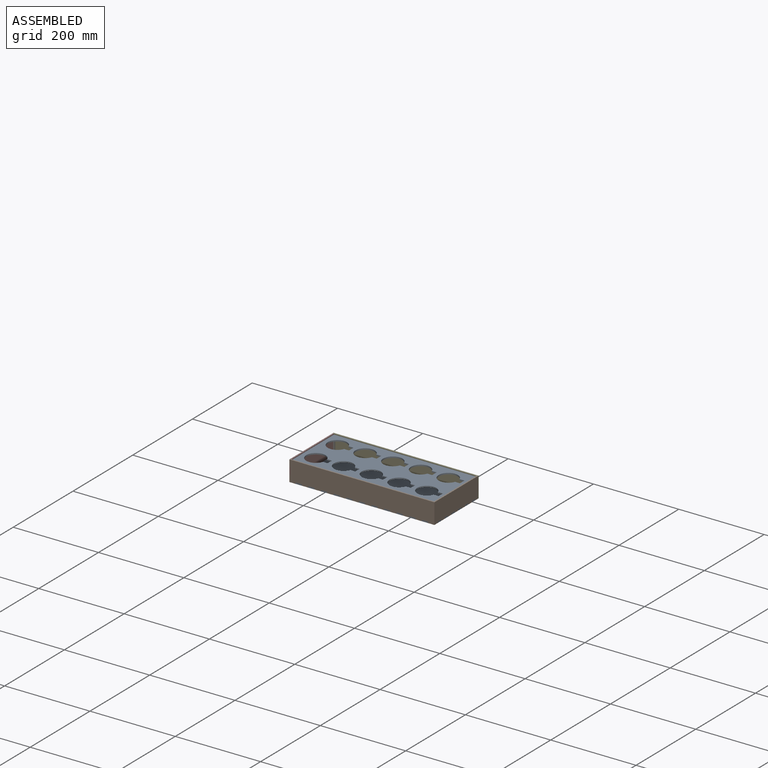
[diagram: assembled view]
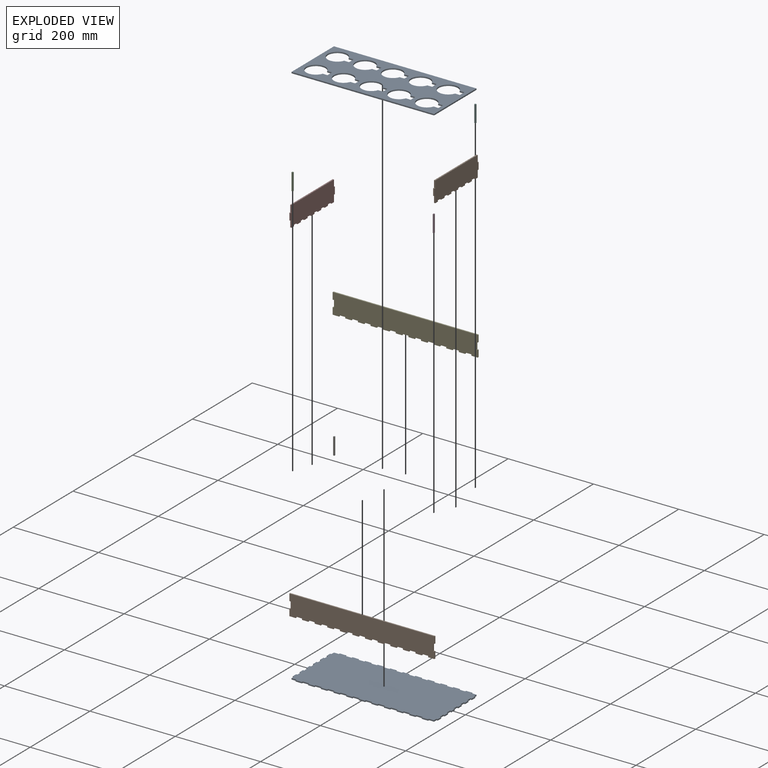
[diagram: exploded view]
GUIDED TOUR — MATED ASSEMBLY (Onshape document 8a0128a03b75702876cab86d, AutoMate assembly 8a0128a03b75702876cab86d_2be92bbeac0dd2bc1f796d09_5a94f49531f2b5c68b8e3e00_default)

This assembly has 10 components, labeled P0..P9 below (a component is one placed occurrence of a part; the same part can appear more than once), held together by 9 mates. A mate is a constraint between two components; its type names the relative motion it leaves free:
  FASTENED — locks the two components together rigidly (no relative motion).
Axis/direction vectors are unit vectors and 'through' points are millimeter coordinates, both in the assembly's world frame.

MATES
  1. FASTENED "Fastened 1": P9 <-> P8, direction (0.000, 0.000, -1.000) through (175.79, 0.71, -12.59) mm
  2. FASTENED "Fastened 5": P3 <-> P8, direction (0.000, 0.000, -1.000) through (175.79, -70.29, -9.59) mm
  3. FASTENED "Fastened 3": P7 <-> P8, direction (0.000, 0.000, -1.000) through (-158.21, 0.71, -12.59) mm
  4. FASTENED "Fastened 8": P2 <-> P8, direction (0.000, 0.000, -1.000) through (-158.21, -70.29, -9.59) mm
  5. FASTENED "Fastened 2": P1 <-> P8, direction (0.000, 0.000, -1.000) through (23.58, -70.29, -12.59) mm
  6. FASTENED "Fastened 6": P5 <-> P8, direction (0.000, 0.000, 1.000) through (175.79, 71.71, -9.59) mm
  7. FASTENED "Fastened 7": P6 <-> P8, direction (0.000, 0.000, 1.000) through (-158.21, 71.71, -9.59) mm
  8. FASTENED "Fastened 4": P4 <-> P8, direction (0.000, 0.000, -1.000) through (-35.55, 71.71, -12.59) mm
  9. FASTENED "Fastened 9": P0 <-> P6, direction (0.000, 0.000, -1.000) through (-158.21, 71.71, 30.41) mm

ASSEMBLY ORDER
  1. P6 — the base component [order verified]
  2. P5 [order verified]
  3. P2 [order verified]
  4. P3 [order verified]
  5. P0 [order verified]
  6. P9 [order verified]
  7. P4 [order verified]
  8. P7 [order verified]
  9. P1 [order verified]
  10. P8 [order verified]
Order-tag legend:
  [order verified] — this step's position reverses a verified removal order: the component was checked to insert without passing through the ones already placed.

Of the 10 components, 5 carry the full construction recipe — the FeatureScript program that regenerates the part's solid from scratch; the rest are supplied as boundary geometry only.
Each toured component is shown spotlighted twice — in the assembled view, then in the exploded view, where a leader line traces a displaced component back to its assembled socket (saturated green if recipe-attached, orange if geometry-only; every other component desaturated gray) — followed by its recipe or geometry summary and the mates that hold it.
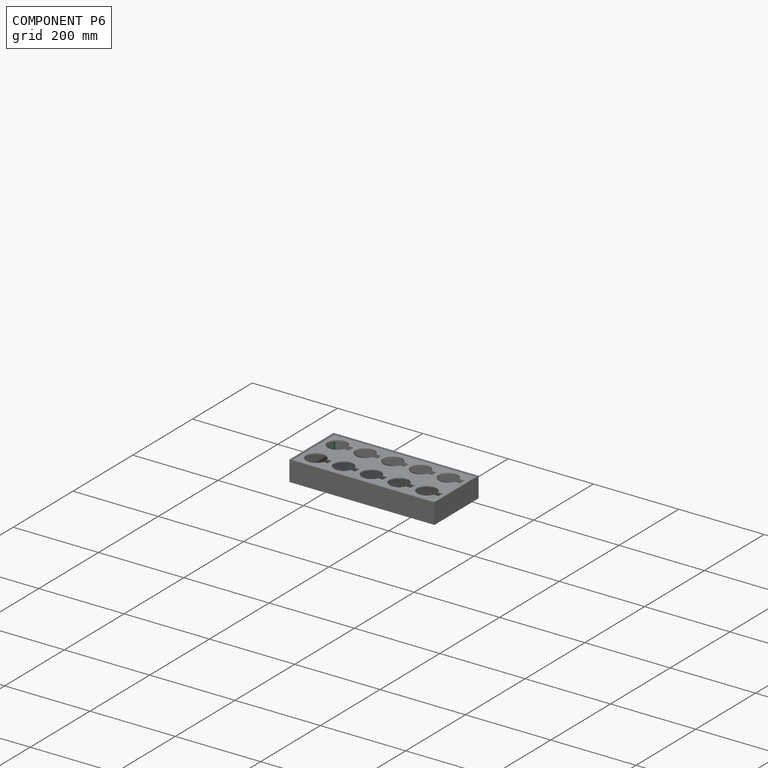
[diagram: component P6 — assembled]
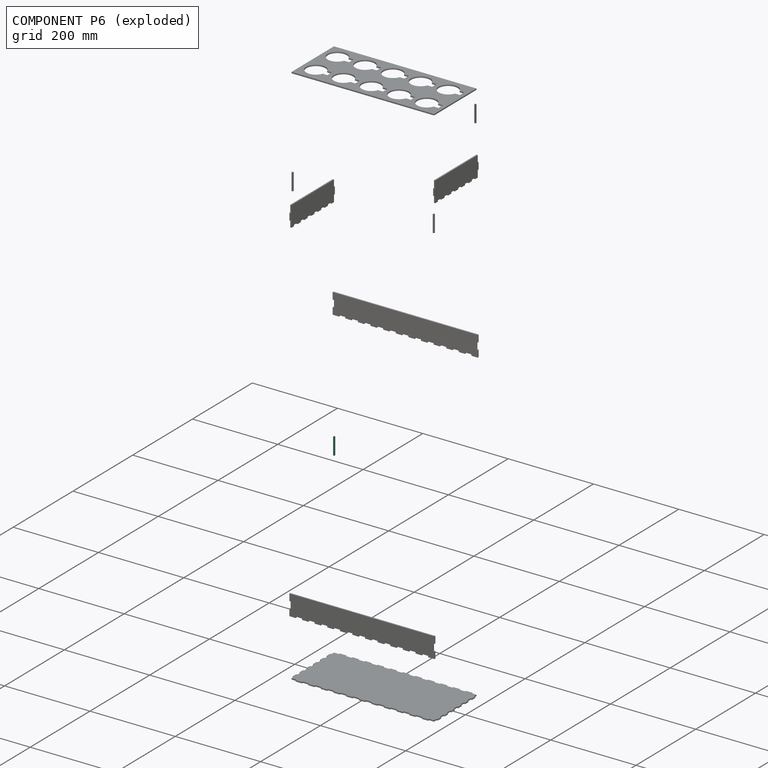
[diagram: component P6 — exploded]
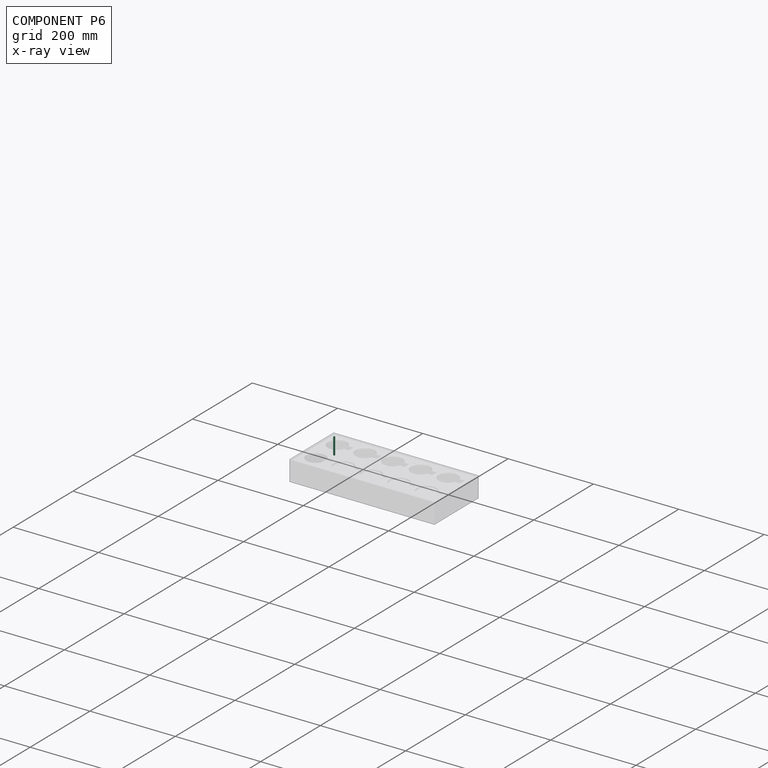
[diagram: component P6 — x-ray view]
COMPONENT P6 — same part as P2 (CADFS 00865831); its construction recipe is shown at P2.
Held by: FASTENED mate "Fastened 7" to P8; FASTENED mate "Fastened 9" to P0.
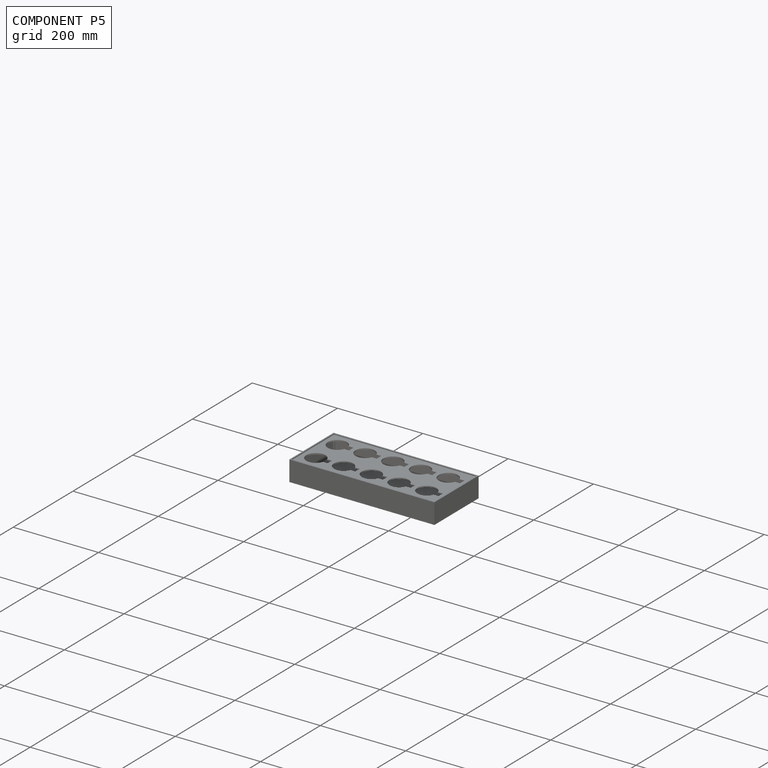
[diagram: component P5 — assembled]
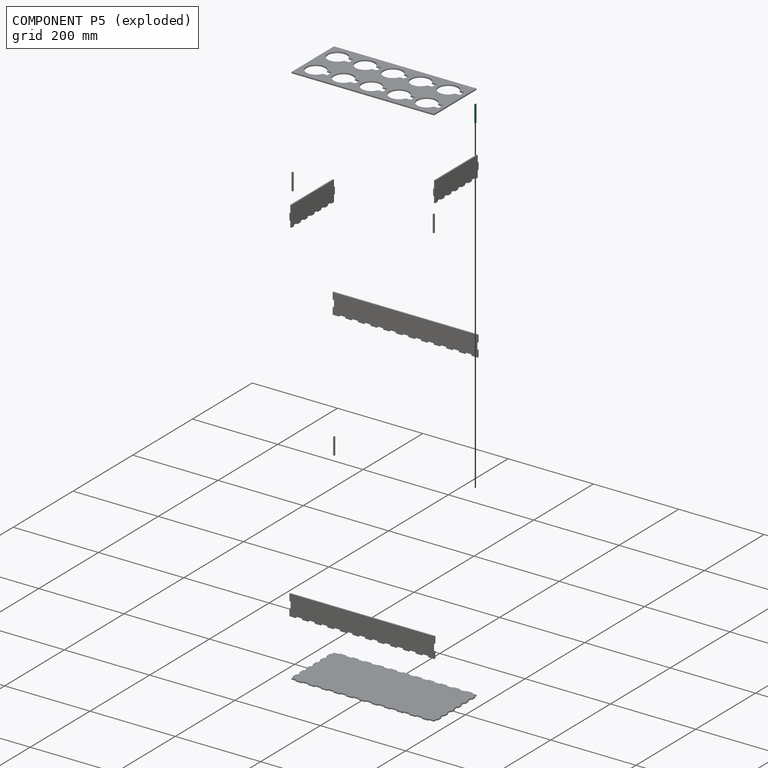
[diagram: component P5 — exploded]
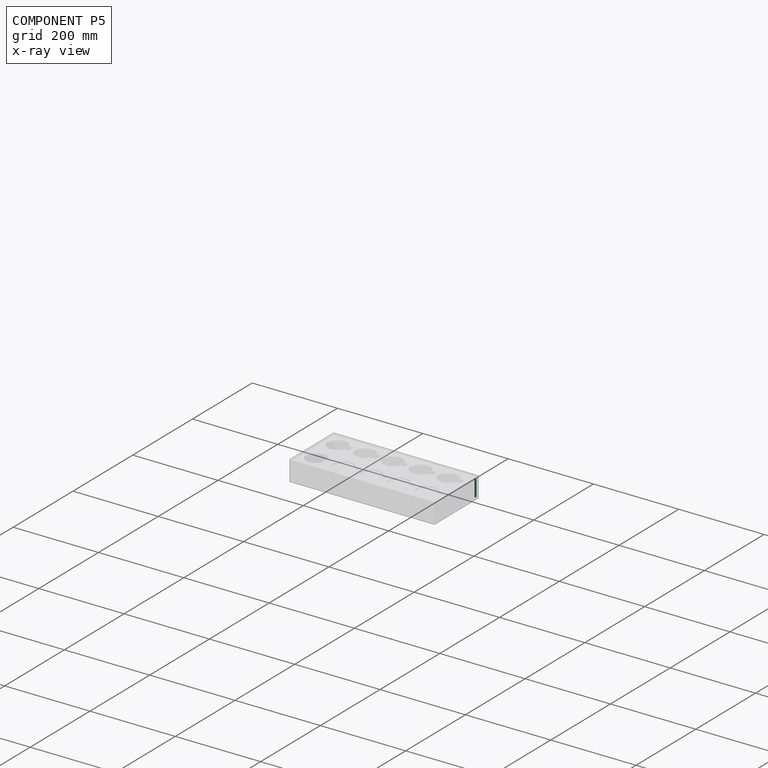
[diagram: component P5 — x-ray view]
COMPONENT P5 — same part as P2 (CADFS 00865831); its construction recipe is shown at P2.
Held by: FASTENED mate "Fastened 6" to P8.
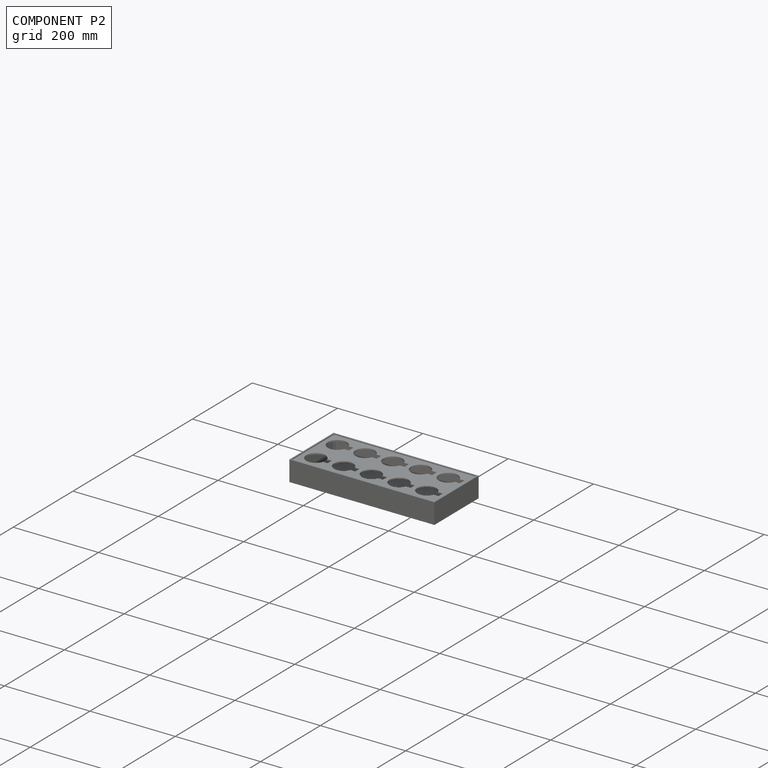
[diagram: component P2 — assembled]
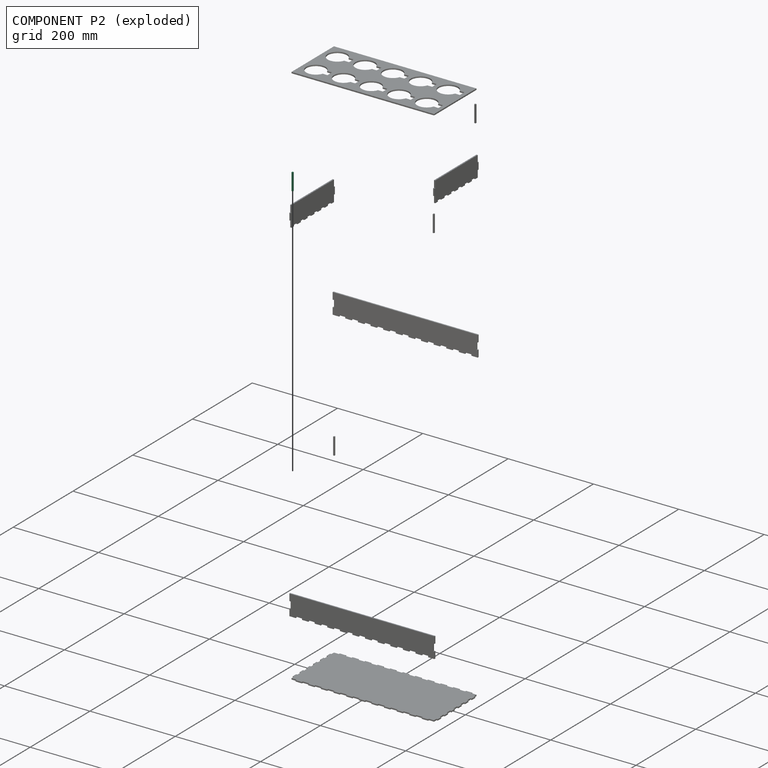
[diagram: component P2 — exploded]
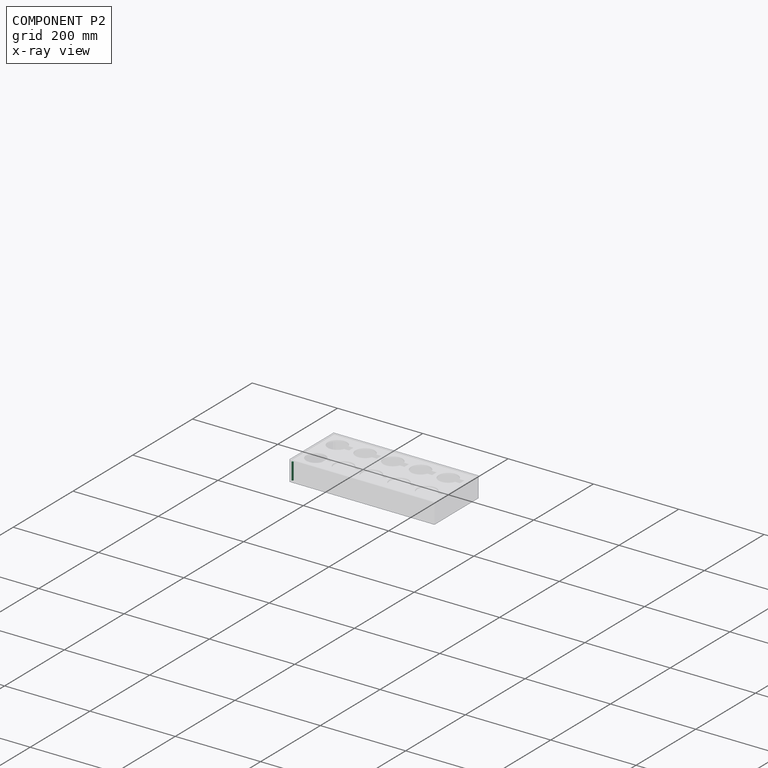
[diagram: component P2 — x-ray view]
COMPONENT P2 — recipe-attached (CADFS 00865831, mesh-verified: the recipe's output STEP matches this component's geometry to below the mesh-comparison resolution (tessellation chordal tolerance ~0.0603 mm)).
Held by: FASTENED mate "Fastened 8" to P8.
Construction recipe (FeatureScript — the CAD program that rebuilds this solid; sketch coordinates are in the units given by the * unit suffixes, e.g. mm):

FeatureScript 1511;
import(path : "onshape/std/geometry.fs", version : "1511.0");
import(path : "onshape/std/common.fs", version : "1511.0");
const mm = millimeter;
const VERTEX = EntityType.VERTEX;
const EDGE = EntityType.EDGE;
const FACE = EntityType.FACE;
const BODY = EntityType.BODY;
function v(x, y){return vector(x, y);}
function OD(order){return orderDisambiguation(order);}
function OSD(set){return originalSetDisambiguation(set);}
function TD(topology){return topologyDisambiguation(topology);}
function TDD(query){return trueDependencyDisambiguation(query);}
function sQuery(a, b, c) {return sketchEntityQuery(a, b, c);}

annotation { "Feature Type Name" : "Feature", "Feature Type Description" : "" }
export const myFeature = defineFeature(function(context is Context, id is Id, definition is map)
    precondition{}
    {
        {
            var Q0;
            Q0=qCreatedBy(makeId("Top.planeOp"),FACE);
            var sketch = newSketch(context, id + "F0", { "sketchPlane" : qUnion([Q0])});
            skLineSegment(sketch, "E0.bottom", {"start": v(-1.5, 1.5) * mm, "end": v(1.5, 1.5) * mm});
            skLineSegment(sketch, "E0.top", {"start": v(-1.5, -1.5) * mm, "end": v(1.5, -1.5) * mm});
            skLineSegment(sketch, "E0.left", {"start": v(-1.5, 1.5) * mm, "end": v(-1.5, -1.5) * mm});
            skLineSegment(sketch, "E0.right", {"start": v(1.5, 1.5) * mm, "end": v(1.5, -1.5) * mm});
            skSolve(sketch);
        }
        {
            var Q0;
            Q0=makeQuery(id+"F0.imprint","IMPRINT",FACE,{"disambiguationData":[TD([[makeQuery(id+"F0.imprint","IMPRINT",EDGE,{"derivedFrom":sQuery(id+"F0.wireOp",EDGE,"E0.bottom")}),-1.0]])]});
            extrude(context, id + "F1", {"entities" : qUnion([Q0]), "depth" : 40 * mm, "offsetDistance" : 25 * mm});
        }
    });
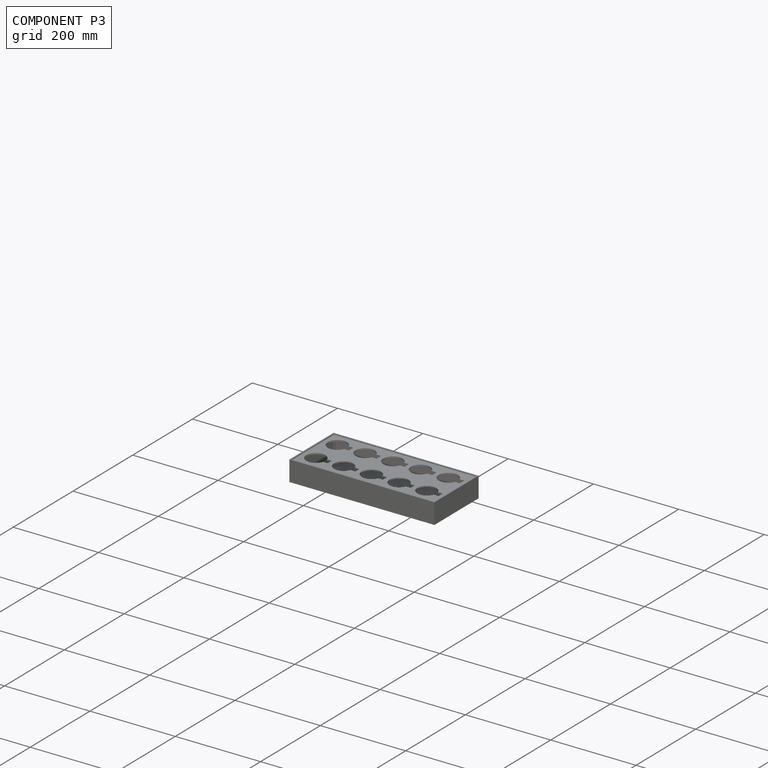
[diagram: component P3 — assembled]
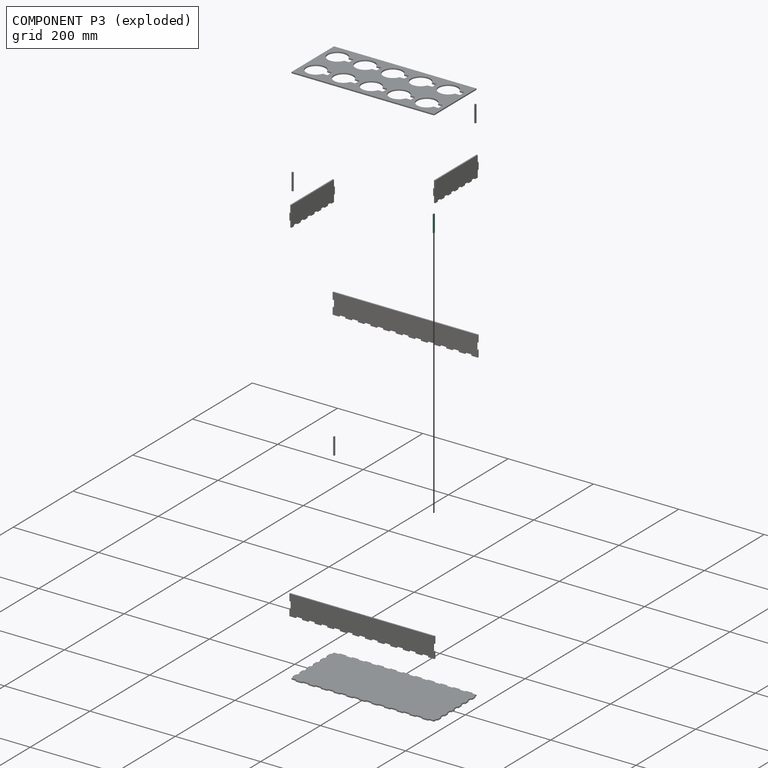
[diagram: component P3 — exploded]
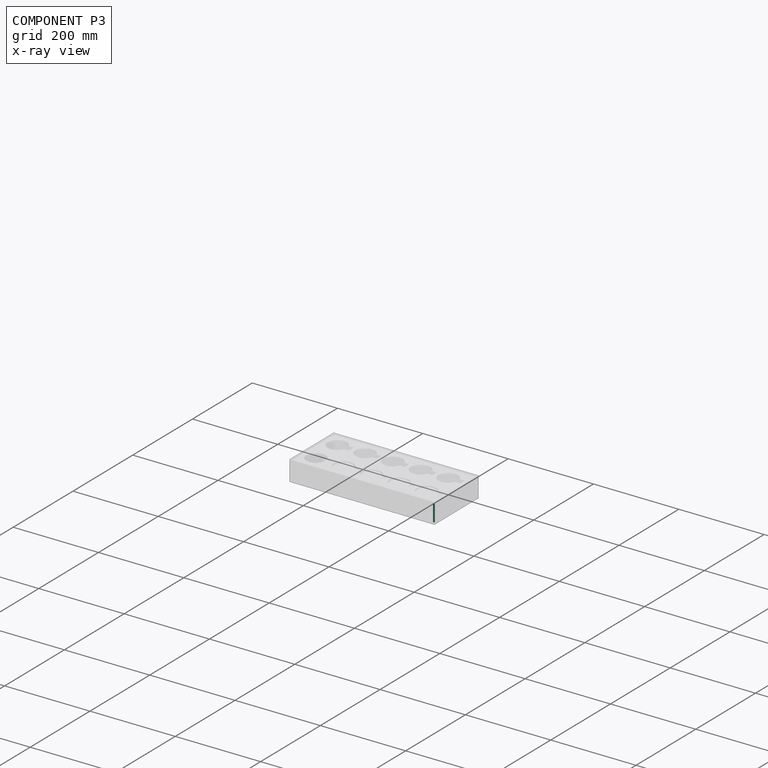
[diagram: component P3 — x-ray view]
COMPONENT P3 — same part as P2 (CADFS 00865831); its construction recipe is shown at P2.
Held by: FASTENED mate "Fastened 5" to P8.
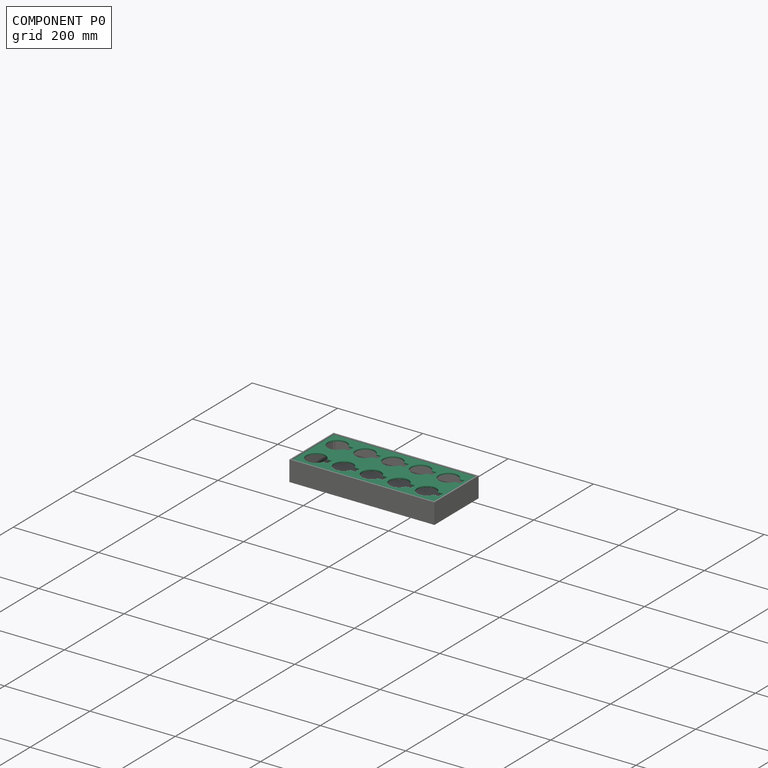
[diagram: component P0 — assembled]
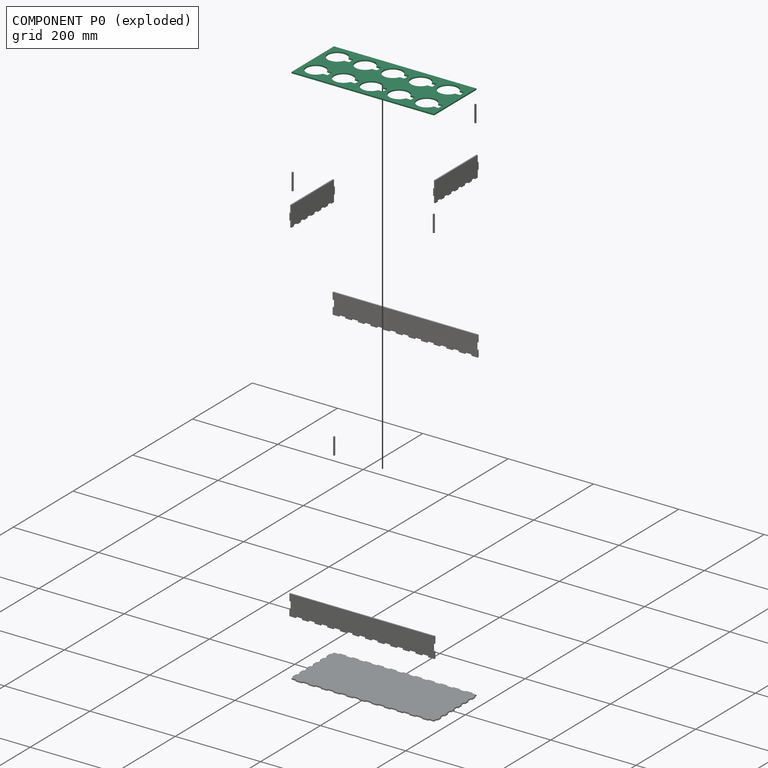
[diagram: component P0 — exploded]
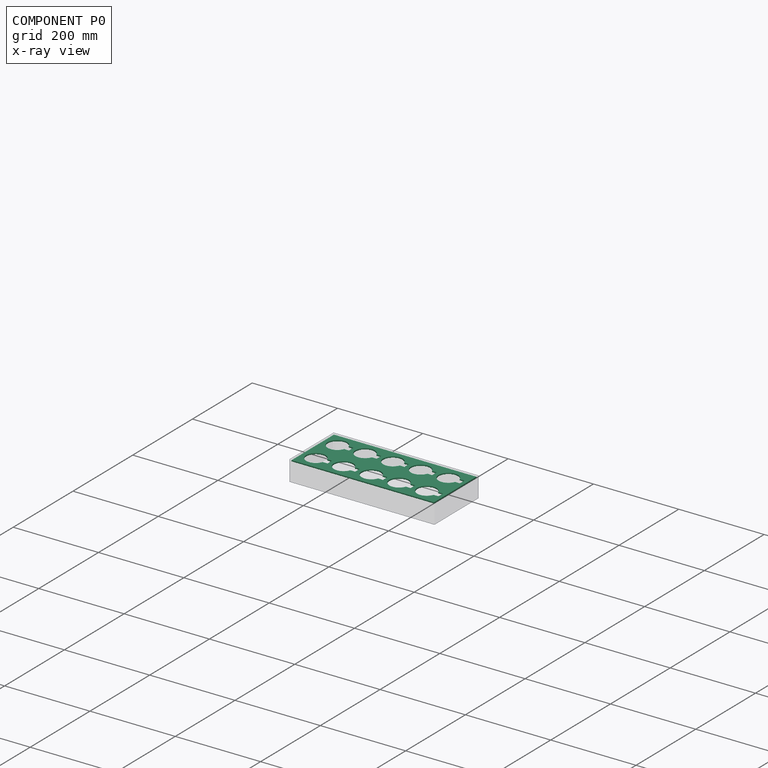
[diagram: component P0 — x-ray view]
COMPONENT P0 — recipe-attached (CADFS 00865829, mesh-verified: the recipe's output STEP matches this component's geometry to below the mesh-comparison resolution (tessellation chordal tolerance ~0.544 mm)).
Held by: FASTENED mate "Fastened 9" to P6.
Construction recipe (FeatureScript — the CAD program that rebuilds this solid; sketch coordinates are in the units given by the * unit suffixes, e.g. mm):

FeatureScript 1511;
import(path : "onshape/std/geometry.fs", version : "1511.0");
import(path : "onshape/std/common.fs", version : "1511.0");
const mm = millimeter;
const VERTEX = EntityType.VERTEX;
const EDGE = EntityType.EDGE;
const FACE = EntityType.FACE;
const BODY = EntityType.BODY;
function v(x, y){return vector(x, y);}
function OD(order){return orderDisambiguation(order);}
function OSD(set){return originalSetDisambiguation(set);}
function TD(topology){return topologyDisambiguation(topology);}
function TDD(query){return trueDependencyDisambiguation(query);}
function sQuery(a, b, c) {return sketchEntityQuery(a, b, c);}

annotation { "Feature Type Name" : "Feature", "Feature Type Description" : "" }
export const myFeature = defineFeature(function(context is Context, id is Id, definition is map)
    precondition{}
    {
        {
            var Q0;
            Q0=qCreatedBy(makeId("Top.planeOp"),FACE);
            var sketch = newSketch(context, id + "F0", { "sketchPlane" : qUnion([Q0])});
            skLineSegment(sketch, "E0.bottom", {"start": v(-167, 71) * mm, "end": v(167, 71) * mm});
            skLineSegment(sketch, "E0.top", {"start": v(-167, -71) * mm, "end": v(167, -71) * mm});
            skLineSegment(sketch, "E0.left", {"start": v(-167, 71) * mm, "end": v(-167, -71) * mm});
            skLineSegment(sketch, "E0.right", {"start": v(167, 71) * mm, "end": v(167, -71) * mm});
            skArc(sketch, "E1", {"start": v(-113.29, -28.5) * mm, "mid": v(-157, -36) * mm, "end": v(-113.29, -43.5) * mm});
            skLineSegment(sketch, "E2", {"start": v(-113.29, -28.5) * mm, "end": v(-102, -28.5) * mm});
            skLineSegment(sketch, "E3", {"start": v(-102, -28.5) * mm, "end": v(-102, -43.5) * mm});
            skLineSegment(sketch, "E4", {"start": v(-102, -43.5) * mm, "end": v(-113.29, -43.5) * mm});
            skLineSegment(sketch, "E5", {"start": v(-134.5, -36) * mm, "end": v(-167, -36) * mm, "construction": true});
            skPoint(sketch, "E5.endSnap0", {"position": v(-157, -36) * mm});
            skArc(sketch, "E6.0.1.0", {"start": v(-113.29, 43.5) * mm, "mid": v(-157, 36) * mm, "end": v(-113.29, 28.5) * mm});
            skLineSegment(sketch, "E6.0.1.1", {"start": v(-113.29, 43.5) * mm, "end": v(-102, 43.5) * mm});
            skLineSegment(sketch, "E6.0.1.2", {"start": v(-102, 43.5) * mm, "end": v(-102, 28.5) * mm});
            skLineSegment(sketch, "E6.0.1.3", {"start": v(-102, 28.5) * mm, "end": v(-113.29, 28.5) * mm});
            skArc(sketch, "E6.1.0.0", {"start": v(-48.29, -28.5) * mm, "mid": v(-92, -36) * mm, "end": v(-48.29, -43.5) * mm});
            skLineSegment(sketch, "E6.1.0.1", {"start": v(-48.29, -28.5) * mm, "end": v(-37, -28.5) * mm});
            skLineSegment(sketch, "E6.1.0.2", {"start": v(-37, -28.5) * mm, "end": v(-37, -43.5) * mm});
            skLineSegment(sketch, "E6.1.0.3", {"start": v(-37, -43.5) * mm, "end": v(-48.29, -43.5) * mm});
            skArc(sketch, "E6.1.1.0", {"start": v(-48.29, 43.5) * mm, "mid": v(-92, 36) * mm, "end": v(-48.29, 28.5) * mm});
            skLineSegment(sketch, "E6.1.1.1", {"start": v(-48.29, 43.5) * mm, "end": v(-37, 43.5) * mm});
            skLineSegment(sketch, "E6.1.1.2", {"start": v(-37, 43.5) * mm, "end": v(-37, 28.5) * mm});
            skLineSegment(sketch, "E6.1.1.3", {"start": v(-37, 28.5) * mm, "end": v(-48.29, 28.5) * mm});
            skArc(sketch, "E6.2.0.0", {"start": v(16.71, -28.5) * mm, "mid": v(-27, -36) * mm, "end": v(16.71, -43.5) * mm});
            skLineSegment(sketch, "E6.2.0.1", {"start": v(16.71, -28.5) * mm, "end": v(28, -28.5) * mm});
            skLineSegment(sketch, "E6.2.0.2", {"start": v(28, -28.5) * mm, "end": v(28, -43.5) * mm});
            skLineSegment(sketch, "E6.2.0.3", {"start": v(28, -43.5) * mm, "end": v(16.71, -43.5) * mm});
            skArc(sketch, "E6.2.1.0", {"start": v(16.71, 43.5) * mm, "mid": v(-27, 36) * mm, "end": v(16.71, 28.5) * mm});
            skLineSegment(sketch, "E6.2.1.1", {"start": v(16.71, 43.5) * mm, "end": v(28, 43.5) * mm});
            skLineSegment(sketch, "E6.2.1.2", {"start": v(28, 43.5) * mm, "end": v(28, 28.5) * mm});
            skLineSegment(sketch, "E6.2.1.3", {"start": v(28, 28.5) * mm, "end": v(16.71, 28.5) * mm});
            skArc(sketch, "E6.3.0.0", {"start": v(81.71, -28.5) * mm, "mid": v(38, -36) * mm, "end": v(81.71, -43.5) * mm});
            skLineSegment(sketch, "E6.3.0.1", {"start": v(81.71, -28.5) * mm, "end": v(93, -28.5) * mm});
            skLineSegment(sketch, "E6.3.0.2", {"start": v(93, -28.5) * mm, "end": v(93, -43.5) * mm});
            skLineSegment(sketch, "E6.3.0.3", {"start": v(93, -43.5) * mm, "end": v(81.71, -43.5) * mm});
            skArc(sketch, "E6.3.1.0", {"start": v(81.71, 43.5) * mm, "mid": v(38, 36) * mm, "end": v(81.71, 28.5) * mm});
            skLineSegment(sketch, "E6.3.1.1", {"start": v(81.71, 43.5) * mm, "end": v(93, 43.5) * mm});
            skLineSegment(sketch, "E6.3.1.2", {"start": v(93, 43.5) * mm, "end": v(93, 28.5) * mm});
            skLineSegment(sketch, "E6.3.1.3", {"start": v(93, 28.5) * mm, "end": v(81.71, 28.5) * mm});
            skArc(sketch, "E6.4.0.0", {"start": v(146.71, -28.5) * mm, "mid": v(103, -36) * mm, "end": v(146.71, -43.5) * mm});
            skLineSegment(sketch, "E6.4.0.1", {"start": v(146.71, -28.5) * mm, "end": v(158, -28.5) * mm});
            skLineSegment(sketch, "E6.4.0.2", {"start": v(158, -28.5) * mm, "end": v(158, -43.5) * mm});
            skLineSegment(sketch, "E6.4.0.3", {"start": v(158, -43.5) * mm, "end": v(146.71, -43.5) * mm});
            skArc(sketch, "E6.4.1.0", {"start": v(146.71, 43.5) * mm, "mid": v(103, 36) * mm, "end": v(146.71, 28.5) * mm});
            skLineSegment(sketch, "E6.4.1.1", {"start": v(146.71, 43.5) * mm, "end": v(158, 43.5) * mm});
            skLineSegment(sketch, "E6.4.1.2", {"start": v(158, 43.5) * mm, "end": v(158, 28.5) * mm});
            skLineSegment(sketch, "E6.4.1.3", {"start": v(158, 28.5) * mm, "end": v(146.71, 28.5) * mm});
            skLineSegment(sketch, "E6.direction1", {"start": v(-134.5, -36) * mm, "end": v(-69.5, -36) * mm, "construction": true});
            skLineSegment(sketch, "E6.direction2", {"start": v(-134.5, -36) * mm, "end": v(-134.5, 36) * mm, "construction": true});
            skSolve(sketch);
        }
        {
            var Q0;
            Q0 = qSketchRegion(id + "F0", true);
            extrude(context, id + "F1", {"entities" : qUnion([Q0]), "depth" : 3 * mm, "offsetDistance" : 25 * mm});
        }
    });
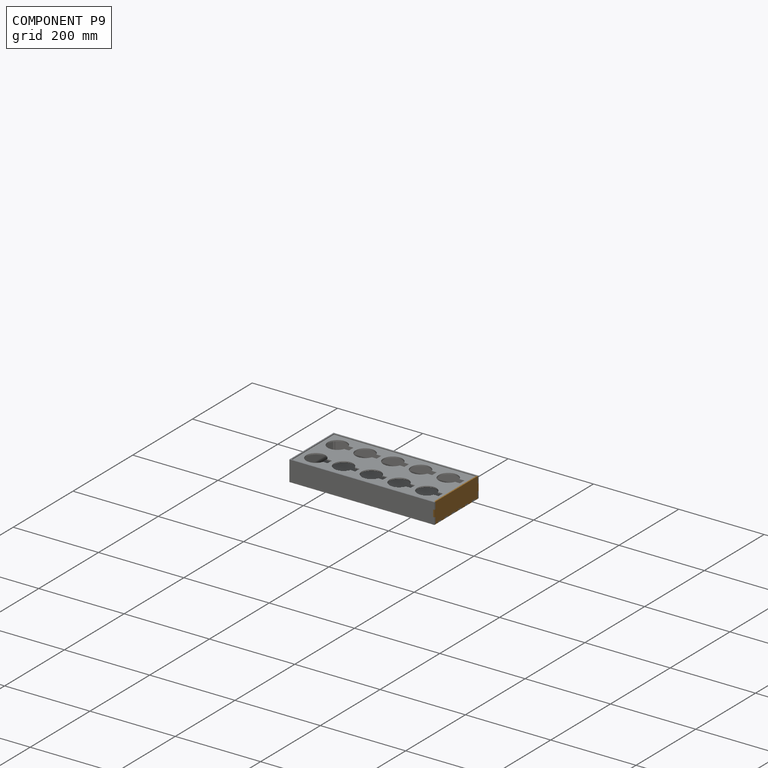
[diagram: component P9 — assembled]
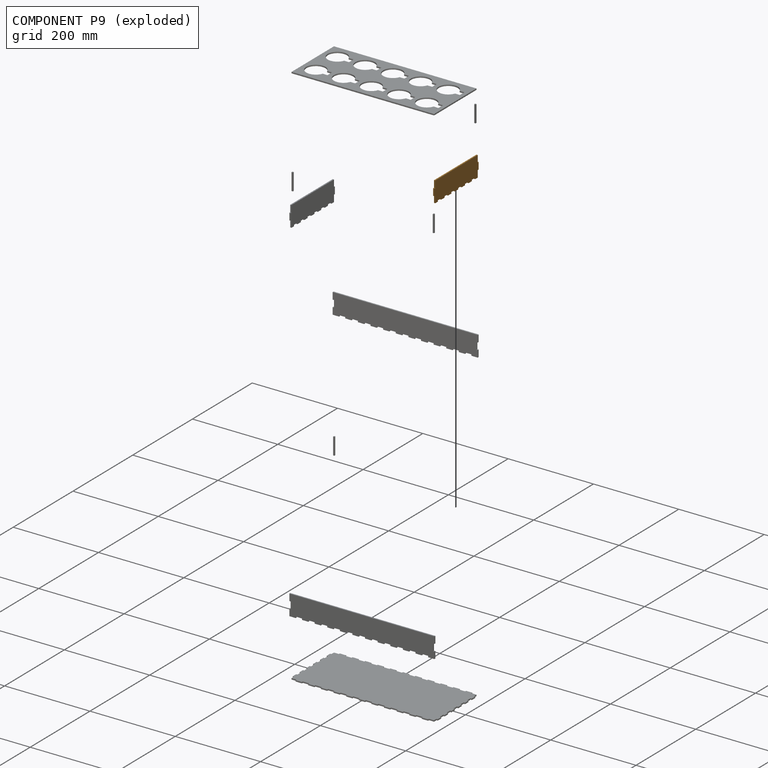
[diagram: component P9 — exploded]
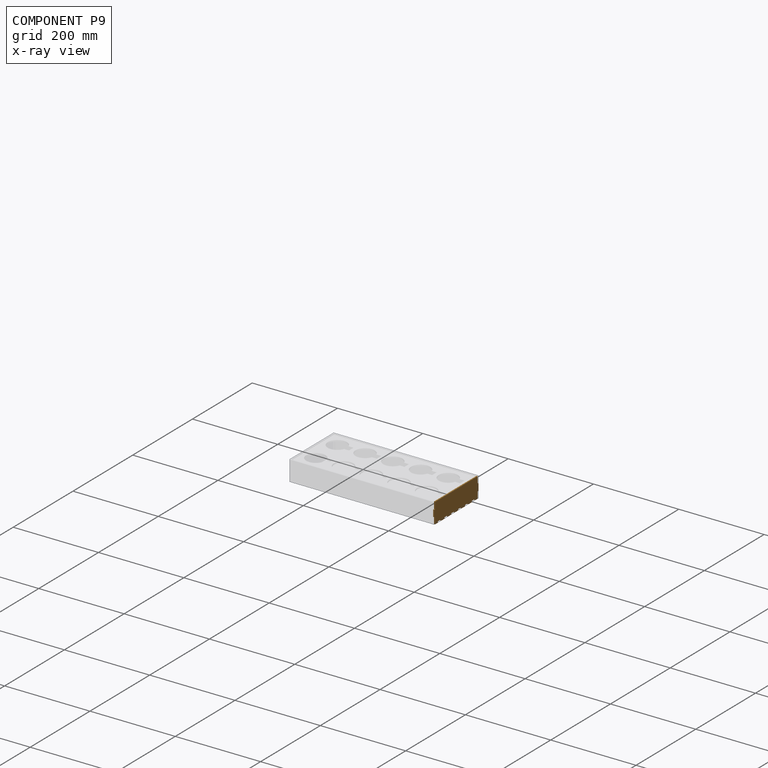
[diagram: component P9 — x-ray view]
COMPONENT P9 — geometry summary (no construction recipe available for this part):
  bounding box: 148.0 x 48.0 x 3.0 mm
  B-rep topology: 1 solid, 38 faces, 216 edges
  volume: 20121 mm^3 (94% of its bounding box)
  symmetry: 2-fold rotationally symmetric about the z axis; mirror-symmetric across its x mid-plane, y mid-plane
Held by: FASTENED mate "Fastened 1" to P8.
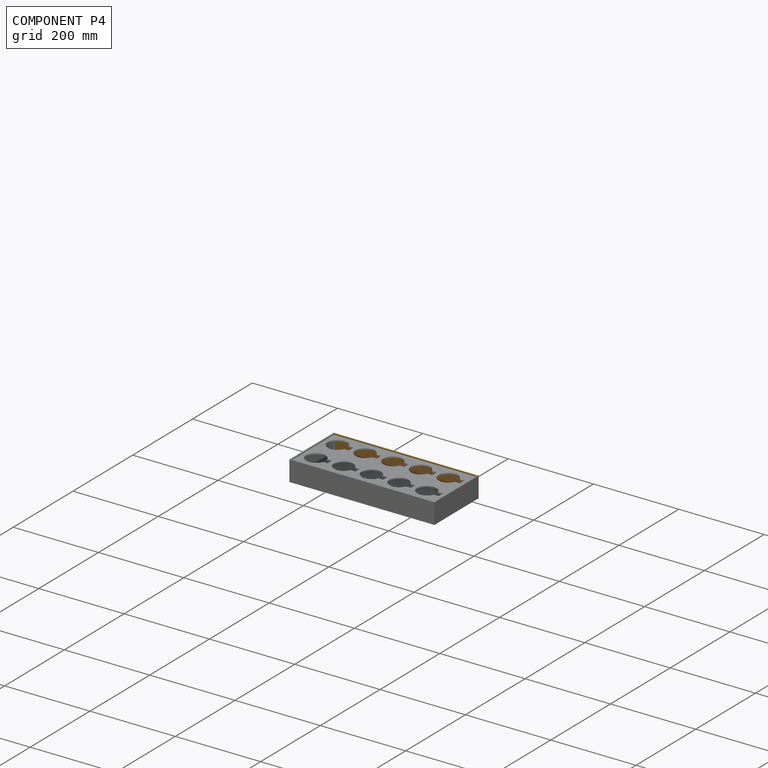
[diagram: component P4 — assembled]
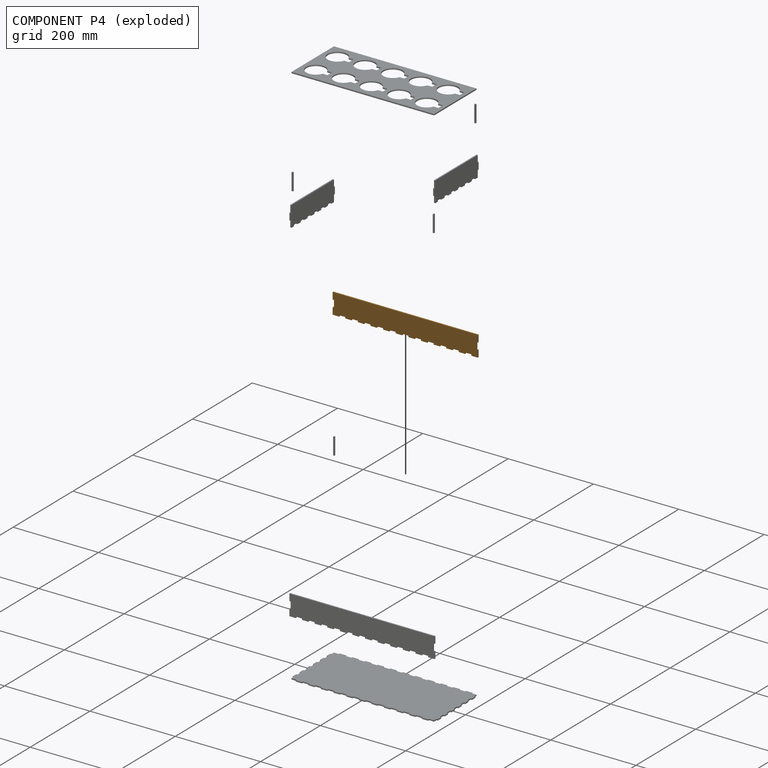
[diagram: component P4 — exploded]
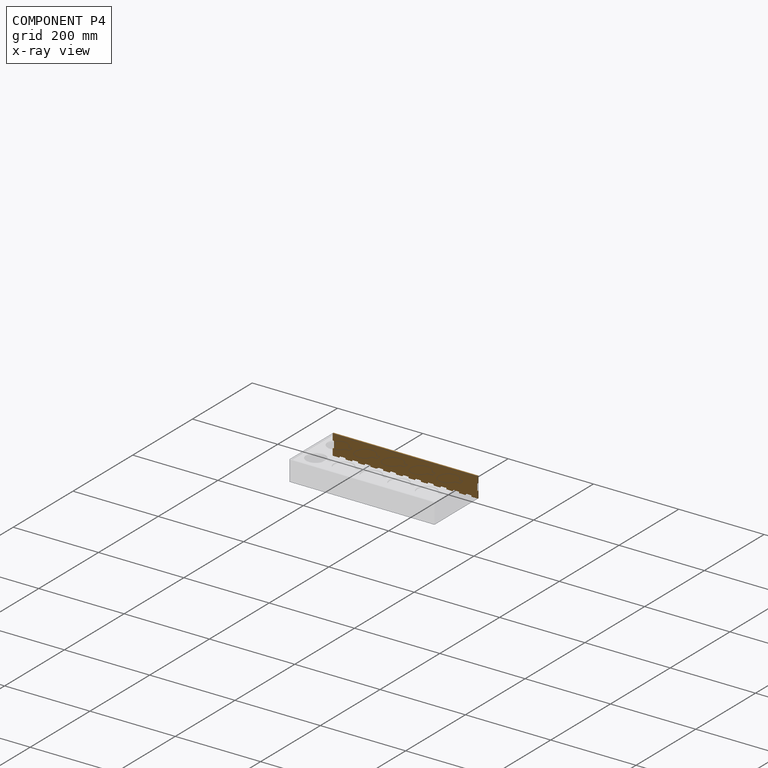
[diagram: component P4 — x-ray view]
COMPONENT P4 — geometry summary (no construction recipe available for this part):
  bounding box: 340.0 x 48.0 x 3.0 mm
  B-rep topology: 1 solid, 58 faces, 336 edges
  volume: 47209 mm^3 (96% of its bounding box)
  symmetry: 2-fold rotationally symmetric about the z axis; mirror-symmetric across its x mid-plane, y mid-plane
Held by: FASTENED mate "Fastened 4" to P8.
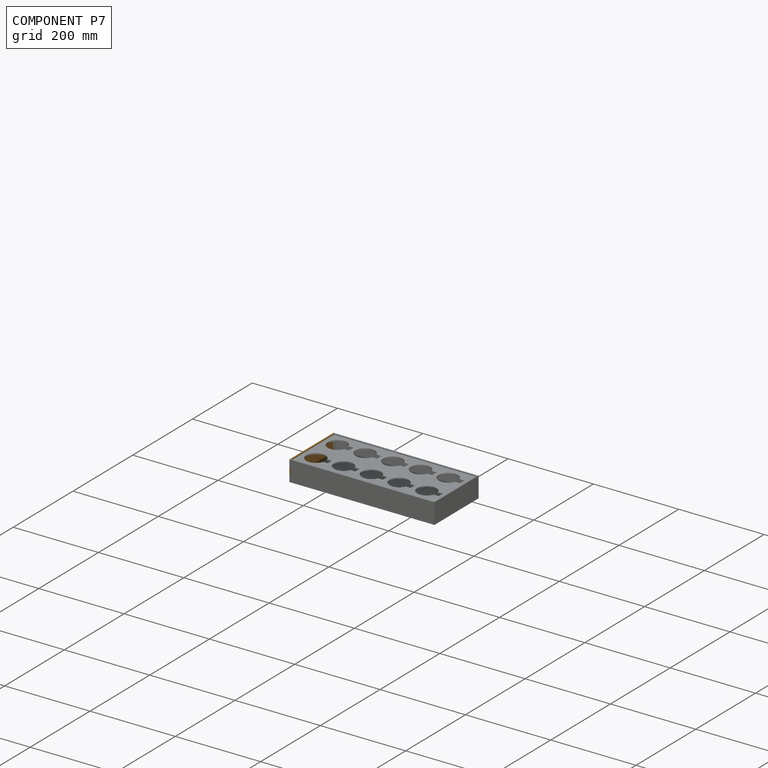
[diagram: component P7 — assembled]
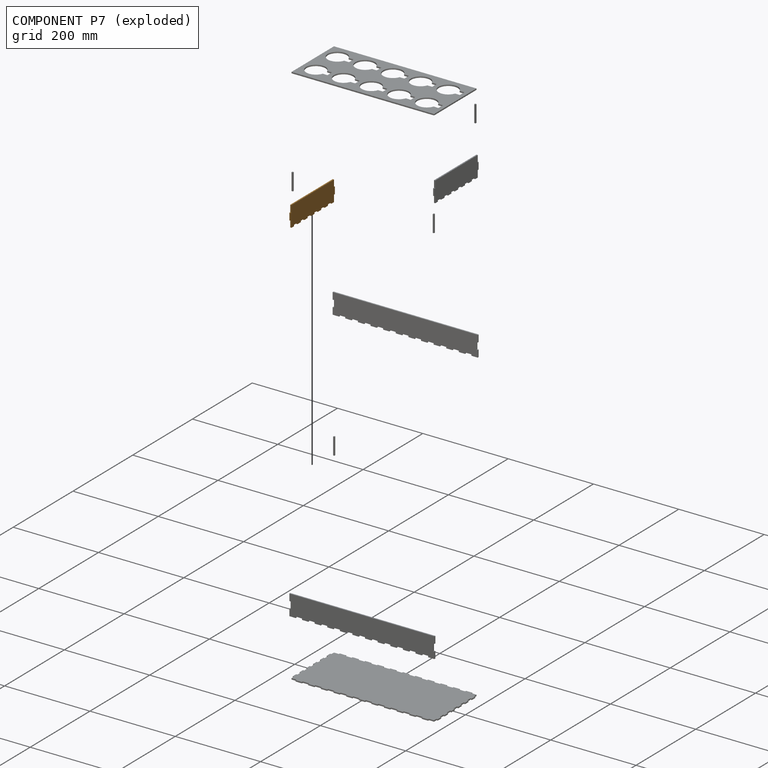
[diagram: component P7 — exploded]
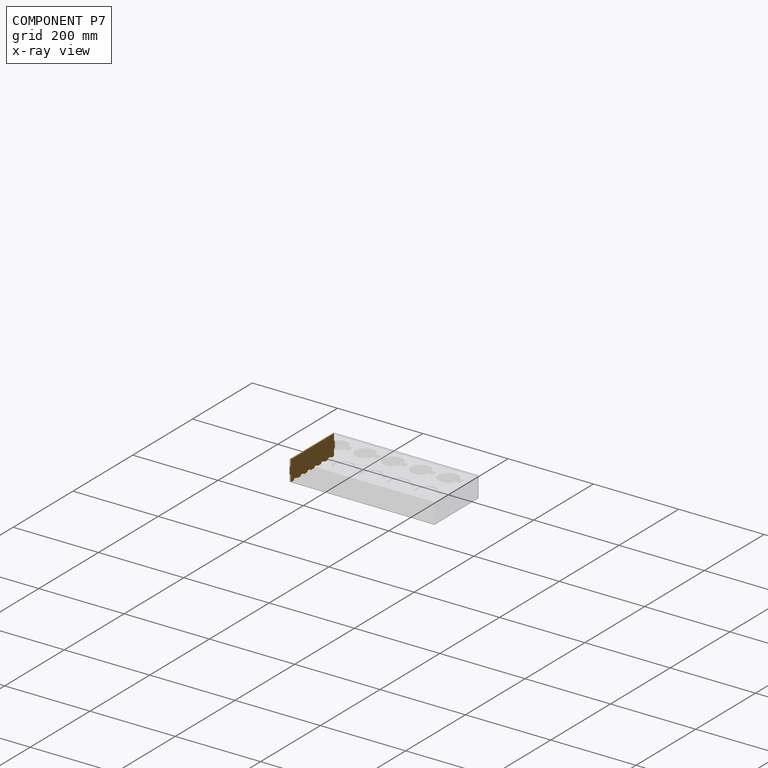
[diagram: component P7 — x-ray view]
COMPONENT P7 — geometry summary (no construction recipe available for this part):
  bounding box: 148.0 x 48.0 x 3.0 mm
  B-rep topology: 1 solid, 38 faces, 216 edges
  volume: 20121 mm^3 (94% of its bounding box)
  symmetry: 2-fold rotationally symmetric about the z axis; mirror-symmetric across its x mid-plane, y mid-plane
Held by: FASTENED mate "Fastened 3" to P8.
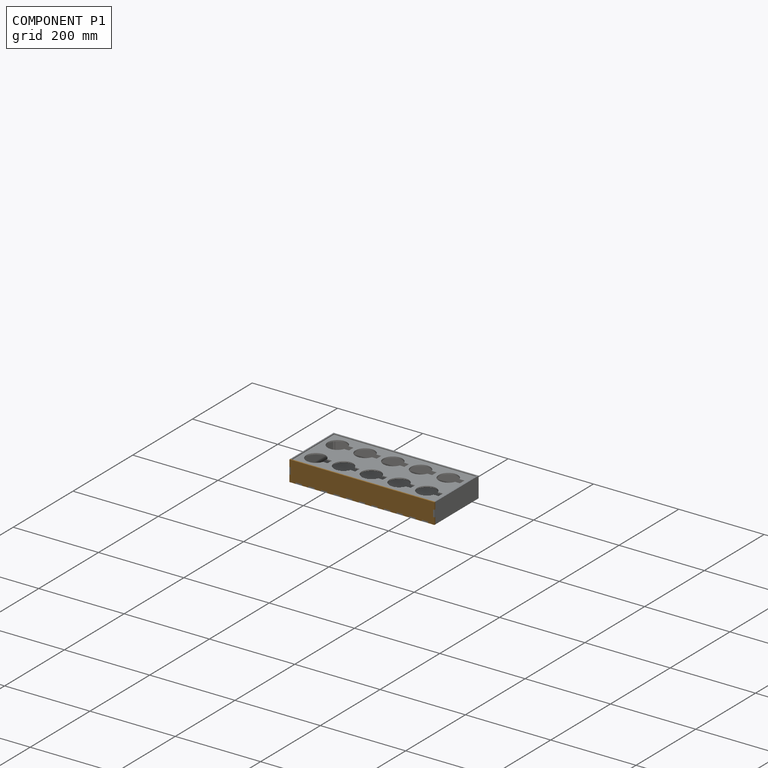
[diagram: component P1 — assembled]
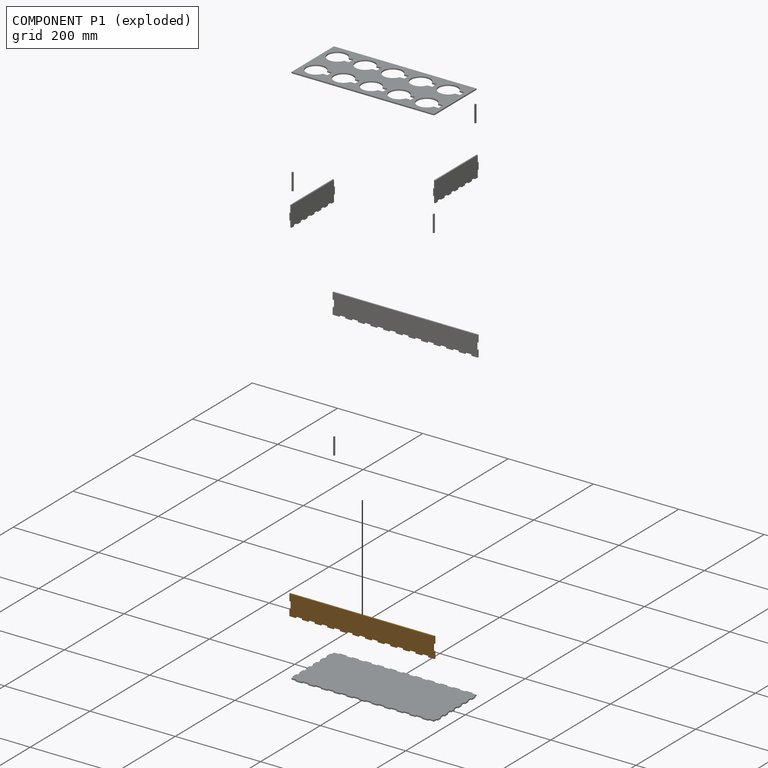
[diagram: component P1 — exploded]
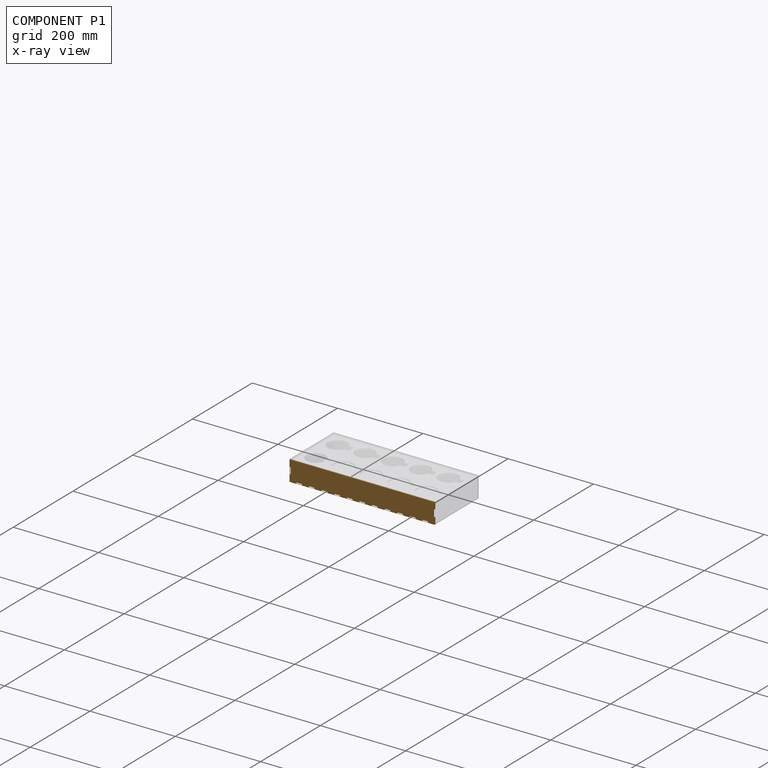
[diagram: component P1 — x-ray view]
COMPONENT P1 — geometry summary (no construction recipe available for this part):
  bounding box: 340.0 x 48.0 x 3.0 mm
  B-rep topology: 1 solid, 58 faces, 336 edges
  volume: 47209 mm^3 (96% of its bounding box)
  symmetry: 2-fold rotationally symmetric about the z axis; mirror-symmetric across its x mid-plane, y mid-plane
Held by: FASTENED mate "Fastened 2" to P8.
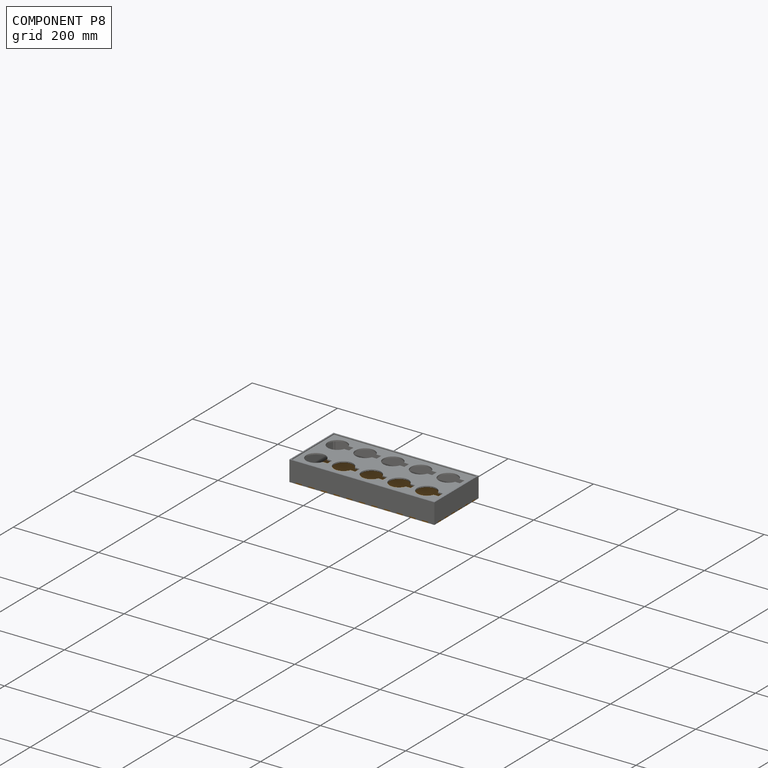
[diagram: component P8 — assembled]
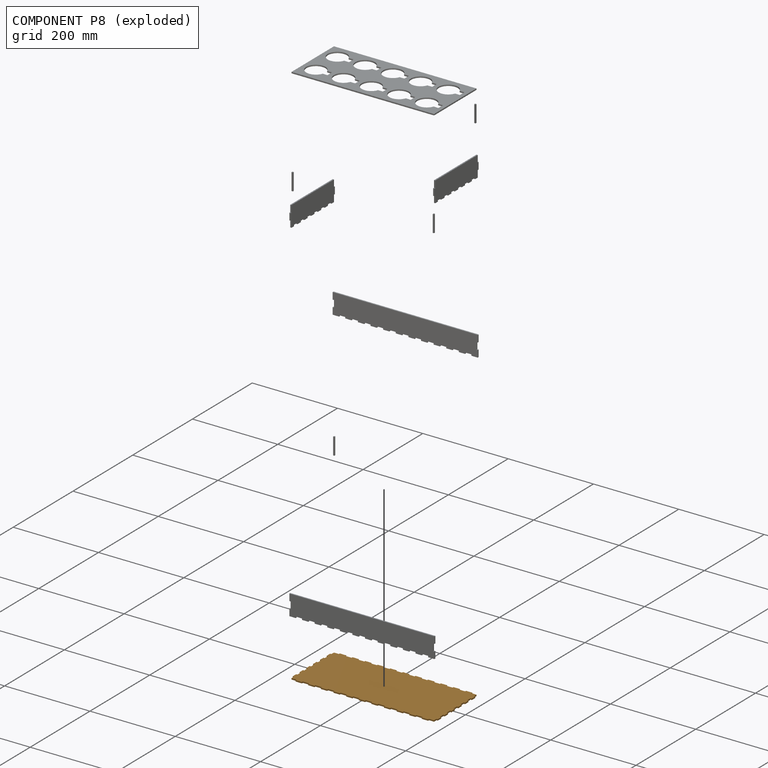
[diagram: component P8 — exploded]
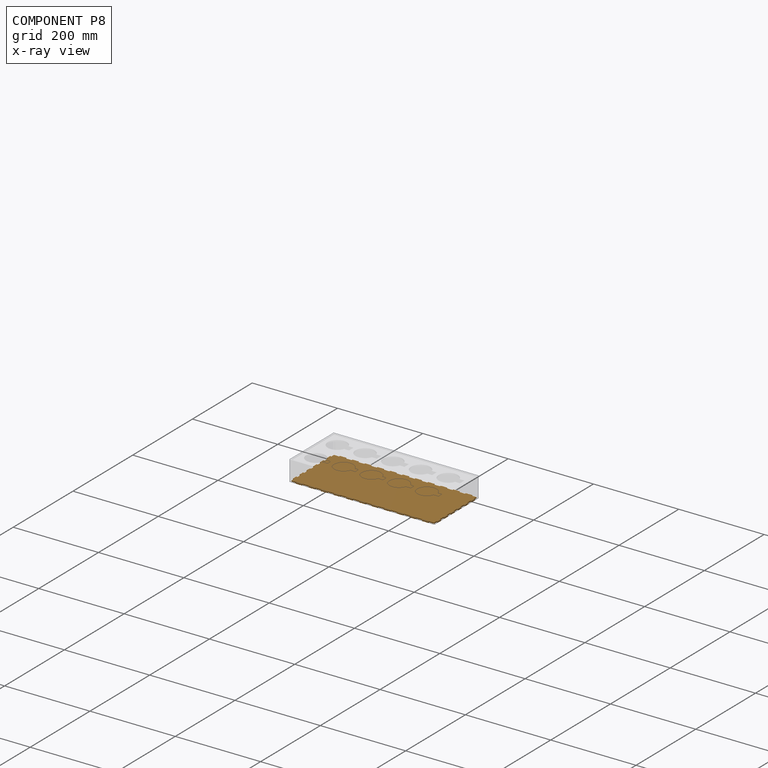
[diagram: component P8 — x-ray view]
COMPONENT P8 — geometry summary (no construction recipe available for this part):
  bounding box: 340.0 x 148.0 x 3.0 mm
  B-rep topology: 1 solid, 142 faces, 840 edges
  volume: 146440 mm^3 (97% of its bounding box)
  symmetry: 2-fold rotationally symmetric about the x axis; 2-fold rotationally symmetric about the y axis; 2-fold rotationally symmetric about the z axis; mirror-symmetric across its x mid-plane, y mid-plane, z mid-plane
Held by: FASTENED mate "Fastened 1" to P9; FASTENED mate "Fastened 5" to P3; FASTENED mate "Fastened 3" to P7; FASTENED mate "Fastened 8" to P2; FASTENED mate "Fastened 2" to P1; FASTENED mate "Fastened 6" to P5; FASTENED mate "Fastened 7" to P6; FASTENED mate "Fastened 4" to P4.
PROVENANCE & LICENSES
Assembly (occurrences, transforms, mates, per-part STEP geometry): AutoMate dataset, Zenodo record 7776208, CC0.
Construction recipes: CADFS (HuggingFace VladPyatov/CADFS, CC-BY-4.0, layered over the ABC dataset), FeatureScript reconstruction programs keyed by ABC model id.
Join: ABC meta listings map ABC model id -> Onshape documentId; within a shared document, parts are matched by geometric signature (bounding-box dims + volume at 0.1% relative tolerance, exact B-rep face/solid counts).
Verification: 5 of this assembly's 10 components carry a recipe attachment, and every attachment is mesh-verified: the CADFS STEP and the AutoMate member STEP were compared as meshes in their shared local frame (symmetric sampled-point-to-mesh distance); worst across the 5 attachments: below the mesh-comparison resolution (tessellation chordal tolerance ~0.544 mm) on a 363 mm part.
Renders: orthographic iso camera (az 35 / el 25); the floor grid conveys scale (grid pitch printed in each image; no ruler). In the exploded view each component is displaced by its stored offset vector: the offsets alone carry the explosion direction (mate normal/axis signs are not orientation cues and do not encode it), and separation distances are assigned per mate-chain, not proportionally to assembly-order depth.
